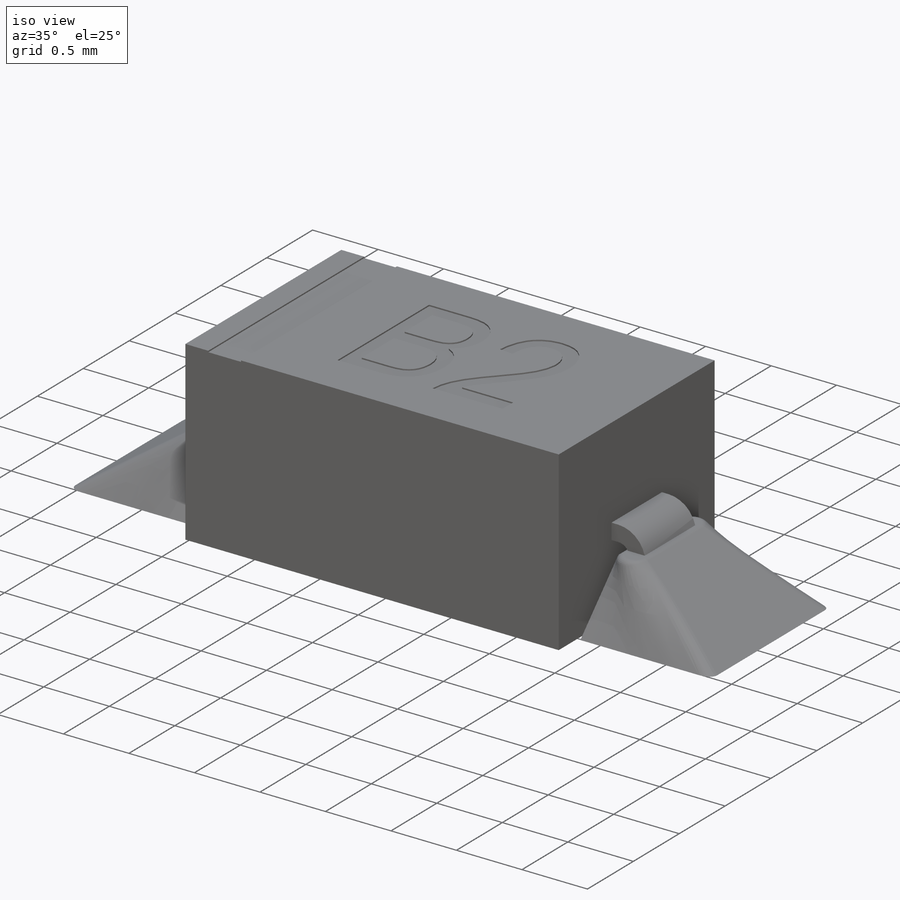
[diagram: iso view]
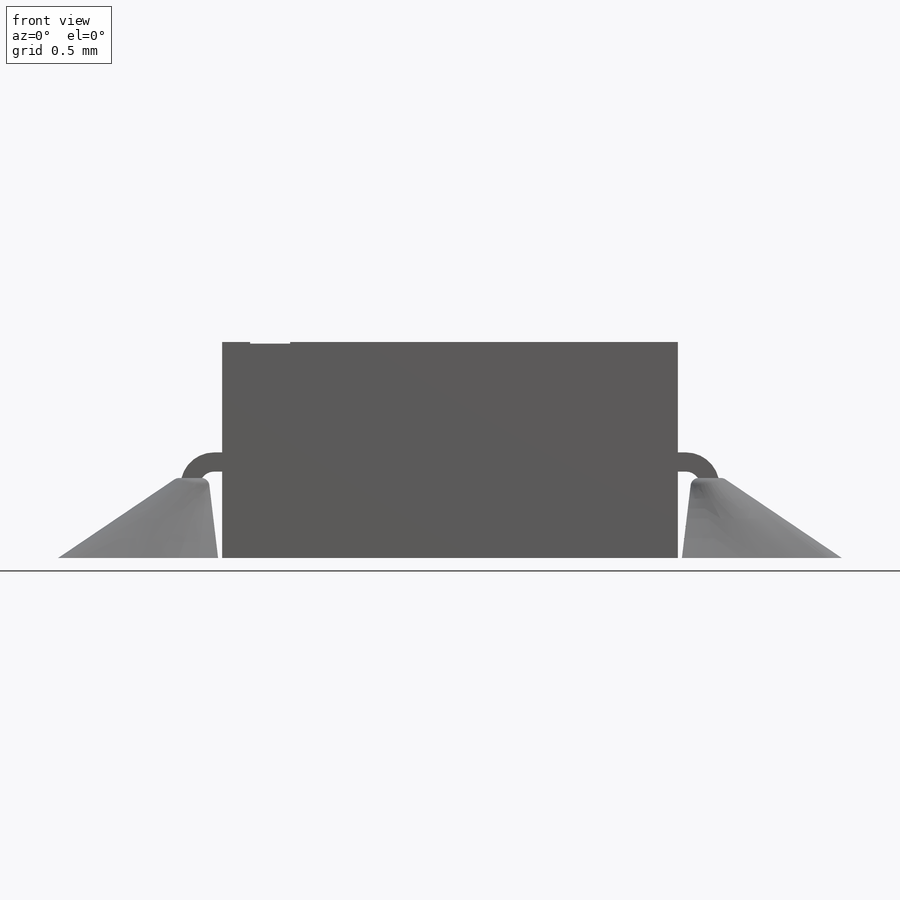
[diagram: front view]
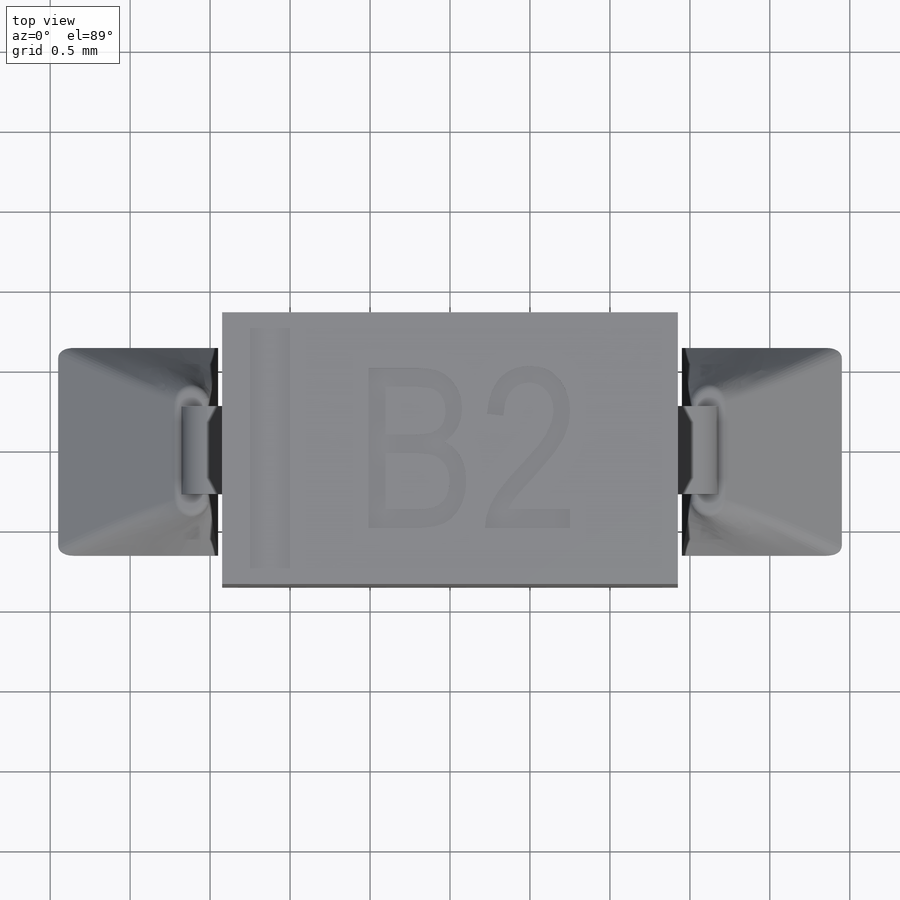
[diagram: top view]
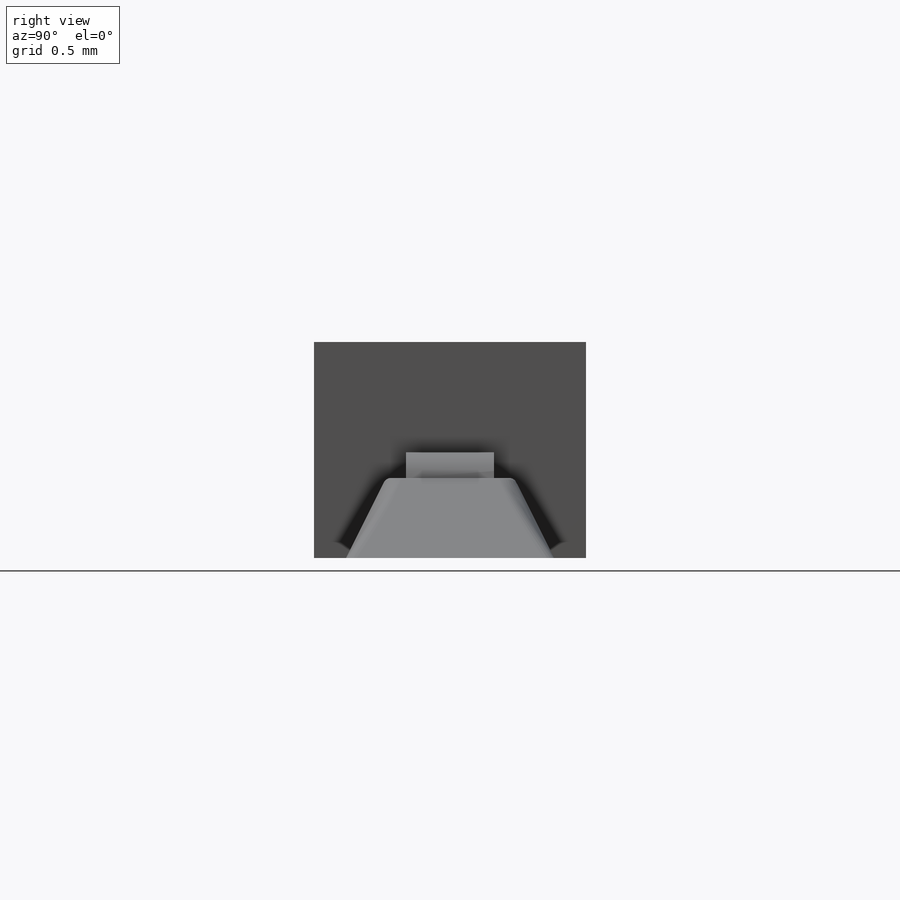
[diagram: right view]
SOLIDWORKS PART (.sldprt)
format: sldprt  version: not decoded by parser v0  size: 473,088 bytes
history: native  units: mm
features: sketch x6, cut_extrude x2, fillet x2, material x1, extrude x1, plane x1, mirror x1 (+13 scaffold rows collapsed)
feature tree (27):
  scaffold x13  (default folders/planes/origin — collapsed)
  material  "ABS"
  sketch  "Sketch1"  dims[D1=2.85mm D2=1.425mm D3=1.7mm D4=0.85mm]
  extrude  "Boss-Extrude1"  Depth=1.35mm
  sketch  "Sketch2"  dims[c1.D1=0.15mm c1.D2=0.15mm c1.D3=0.15mm c1.D4=3.85mm c1.D5=1.925mm c1.D6=0.15mm c1.D7=0.06mm c1.D8=0.6mm c2.D1=0.55mm c2.D5=0.12mm c2.D6=10.0mm c2.D7=5.0mm]
  sketch  "Sketch3"  dims[c1.D1=1.3mm c1.D2=0.65mm c1.D3=1.45mm c1.D4=5.0mm c1.D5=3.0mm c2.D4=1.0mm]
  plane  "Plane1"  Offset=0.5mm
  sketch  "Sketch5"  dims[c1.D2=~0.060702mm c1.D1=0.6mm c2.D2=0.2mm c2.D3=1.61mm]
  mirror  "Mirror1"
  sketch  "Sketch6"  dims[D1=0.25mm D2=1.25mm]
  cut_extrude  "Cut-Extrude1"  Depth=0.01mm
  sketch  "Sketch7"  dims[D1=0.6mm D2=0.5mm]
  cut_extrude  "Cut-Extrude2"  Depth=0.01mm
  fillet  "Fillet5"  Radius=0.1mm
  fillet  "Fillet9"  Radius=0.05mm
decode coverage: 11 of 12 modeling features carry decoded parameters
note: ~ marks probable driven/reference dimensions
note: suppression state not decoded; provenance and decode notes live in map.json
